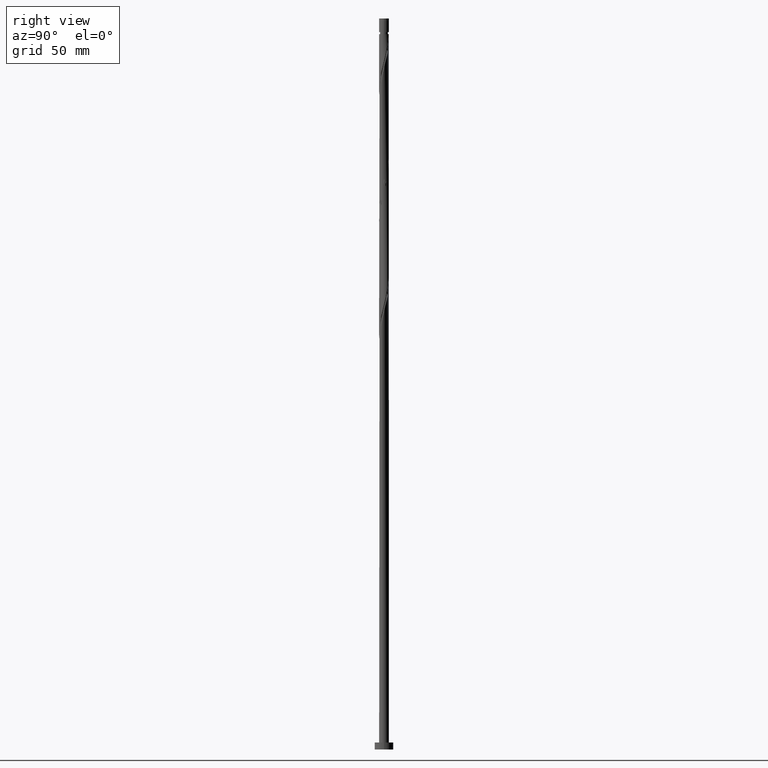
[diagram: clean part render]
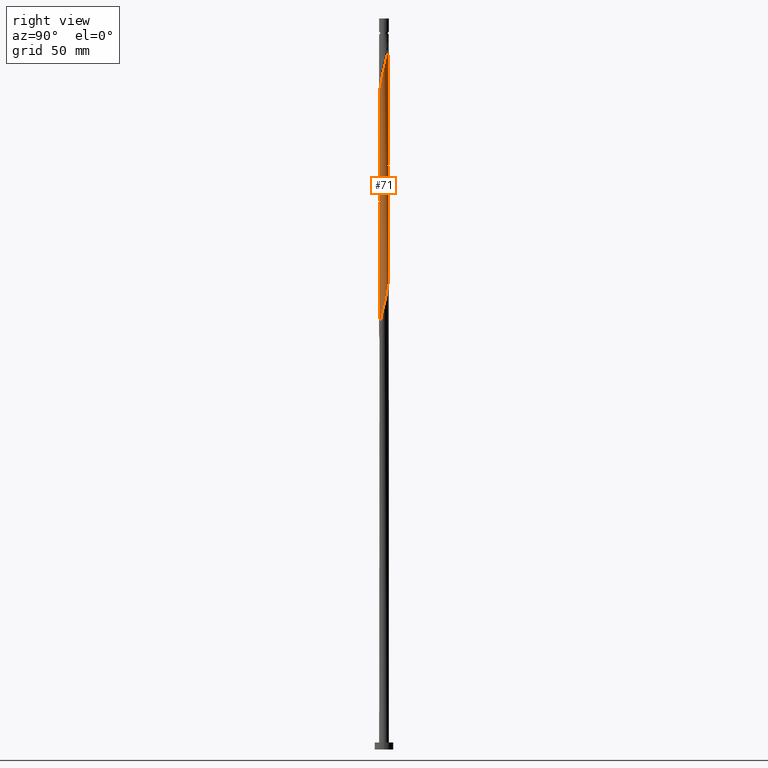
[diagram: same view with one face highlighted and labeled with its STEP entity id]
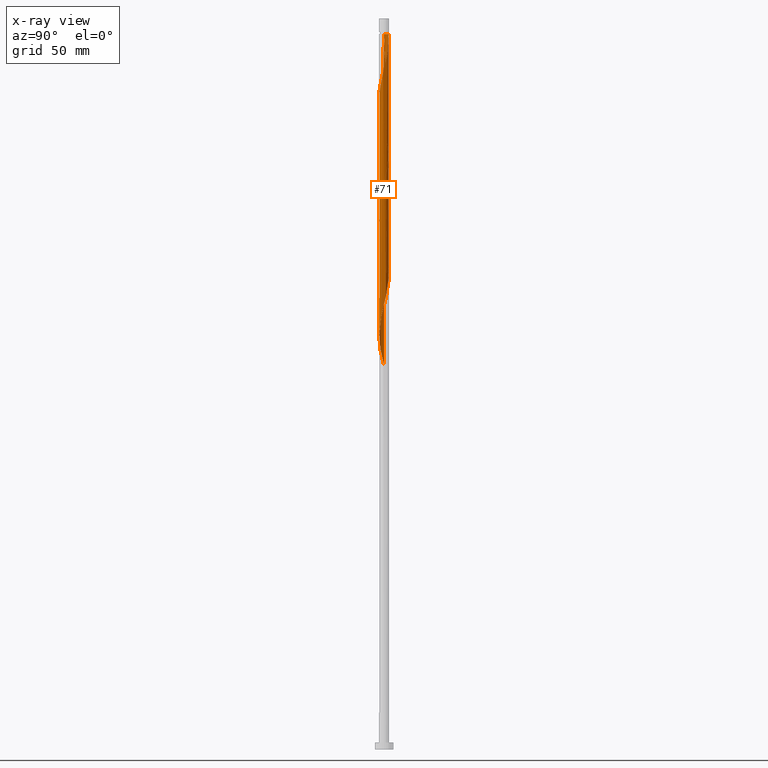
[diagram: x-ray of the same camera — body ghosted, the highlighted face saturated]
A machine part, right view. The second image highlights one B-rep face of the part: STEP entity #71.
The next image is the same camera in x-ray: the body ghosted, the highlighted face saturated — about 0% of this face is hidden behind the body in this view.
In plain terms, the highlighted cylindrical surface (bore or boss wall) has radius 2.1 mm, axis along (-0, -0, -1).
Its self-contained STEP definition (entity closure, byte-faithful):
#4 = CARTESIAN_POINT ( 'NONE',  ( 1.815908065240426694, 1.080954991017605060, 297.9746174760194890 ) ) ;
#13 = CARTESIAN_POINT ( 'NONE',  ( 1.167067840434034220, 1.761799775750848562, 301.7246174760194890 ) ) ;
#24 = CARTESIAN_POINT ( 'NONE',  ( 1.269442871114511151, 1.672876204916714071, 252.0371174760195458 ) ) ;
#29 = CARTESIAN_POINT ( 'NONE',  ( -0.2870755166819187187, 2.093698507840348277, 258.5996174760195458 ) ) ;
#35 = CARTESIAN_POINT ( 'NONE',  ( 2.099391967457698627, -0.05053085170578267699, 293.2871174760195458 ) ) ;
#43 = CARTESIAN_POINT ( 'NONE',  ( -2.100000000000000533, 2.772462431623409920E-15, 165.5866345539256770 ) ) ;
#44 = CARTESIAN_POINT ( 'NONE',  ( -2.058000000000003382, -0.4178947235847835784, 268.9121174760196595 ) ) ;
#48 = CARTESIAN_POINT ( 'NONE',  ( 0.1860138132703548219, 2.105085427075041871, 256.7246174760196027 ) ) ;
#51 = CARTESIAN_POINT ( 'NONE',  ( 0.5164225990933578592, -2.035511655369643069, 233.2871174760195458 ) ) ;
#56 = CARTESIAN_POINT ( 'NONE',  ( 0.000000000000000000, 0.000000000000000000, 315.0000000000000000 ) ) ;
#58 = CARTESIAN_POINT ( 'NONE',  ( -0.5164225990933579702, 2.035511655369643069, 259.5371174760195458 ) ) ;
#62 = CARTESIAN_POINT ( 'NONE',  ( -1.080954991017604616, -1.815908065240424252, 226.7246174760196311 ) ) ;
#63 =( BOUNDED_CURVE ( )  B_SPLINE_CURVE ( 2, ( #1389, #1121, #44, #186, #325, #714, #1669, #1020, #1010, #154, #1701, #703, #1430, #1404, #1537, #732, #196, #1681, #572, #454, #1255, #884, #1143, #1528, #1288, #874, #742, #316, #35, #601, #297, #1296, #167, #4, #1162, #867, #1567, #13, #581, #1132, #422, #981, #288, #589, #445 ),
 .UNSPECIFIED., .F., .T. ) 
 B_SPLINE_CURVE_WITH_KNOTS ( ( 3, 2, 2, 2, 2, 2, 2, 2, 2, 2, 2, 2, 2, 2, 2, 2, 2, 2, 2, 2, 2, 2, 3 ),
 ( 0.5545303401299225277, 0.5625000000000000000, 0.5714285714285713969, 0.5803571428571427937, 0.5892857142857143016, 0.5982142857142856984, 0.6071428571428572063, 0.6160714285714286031, 0.6250000000000000000, 0.6339285714285713969, 0.6428571428571427937, 0.6517857142857144126, 0.6607142857142858094, 0.6696428571428573173, 0.6785714285714287142, 0.6875000000000001110, 0.6964285714285715079, 0.7053571428571429047, 0.7142857142857144126, 0.7232142857142858094, 0.7321428571428573173, 0.7410714285714287142, 0.7500000000000001110 ),
 .UNSPECIFIED. ) 
 CURVE ( )  GEOMETRIC_REPRESENTATION_ITEM ( )  RATIONAL_B_SPLINE_CURVE ( ( 0.9079949616362334996, 0.9039886423360973255, 0.9090909090909637946, 0.9033747362666387781, 0.9090909090909637946, 0.9033747362666387781, 0.9090909090909637946, 0.9033747362666387781, 0.9090909090909637946, 0.9033747362666387781, 0.9090909090909637946, 0.9033747362666387781, 0.9090909090909637946, 0.9033747362666387781, 0.9090909090909637946, 0.9033747362666387781, 0.9090909090909637946, 0.9033747362666387781, 0.9090909090909637946, 0.9033747362666387781, 0.9090909090909637946, 0.9033747362666387781, 0.9090909090909637946, 0.9033747362666387781, 0.9090909090909637946, 0.9033747362666387781, 0.9090909090909637946, 0.9033747362666387781, 0.9090909090909637946, 0.9033747362666387781, 0.9090909090909637946, 0.9033747362666387781, 0.9090909090909637946, 0.9033747362666387781, 0.9090909090909637946, 0.9033747362666387781, 0.9090909090909637946, 0.9033747362666387781, 0.9090909090909637946, 0.9033747362666387781, 0.9090909090909637946, 0.9033747362666387781, 0.9090909090909637946, 0.9033747362666386671, 0.9090909090909639056 ) ) 
 REPRESENTATION_ITEM ( '' )  );
#70 = CARTESIAN_POINT ( 'NONE',  ( -1.609865263481132347, -1.348456092513518279, 171.4121174760195743 ) ) ;
#71 = ADVANCED_FACE ( 'NONE', ( #1719 ), #1308, .T. ) ;
#89 = CARTESIAN_POINT ( 'NONE',  ( -0.6497756338992120018, -2.010914572924958676, 176.0996174760196311 ) ) ;
#100 = CARTESIAN_POINT ( 'NONE',  ( 0.6497756338992122238, 2.010914572924958676, 202.3496174760196311 ) ) ;
#101 = CARTESIAN_POINT ( 'NONE',  ( 2.100000000000000089, 2.571758278209441957E-16, 308.2871174760196595 ) ) ;
#110 = CARTESIAN_POINT ( 'NONE',  ( 0.2870755166819183302, -2.093698507840348277, 179.8496174760196027 ) ) ;
#121 = ORIENTED_EDGE ( 'NONE', *, *, #640, .F. ) ;
#131 = CARTESIAN_POINT ( 'NONE',  ( -2.099391967457694630, -0.05053085170578180269, 218.2871174760195458 ) ) ;
#154 = CARTESIAN_POINT ( 'NONE',  ( -1.167067840434034220, -1.761799775750848784, 275.4746174760194890 ) ) ;
#167 = CARTESIAN_POINT ( 'NONE',  ( 1.913411319082694462, 0.8653653124584090861, 297.0371174760197164 ) ) ;
#177 = CARTESIAN_POINT ( 'NONE',  ( 2.100000000000000533, 0.02526908404941695732, 244.4369972421507669 ) ) ;
#186 = CARTESIAN_POINT ( 'NONE',  ( -2.010914572924960453, -0.6497756338992121128, 269.8496174760194890 ) ) ;
#194 = CIRCLE ( 'NONE', #1656, 2.099999999999975220 ) ;
#196 = CARTESIAN_POINT ( 'NONE',  ( 0.4178947235847834674, -2.058000000000003382, 282.0371174760195458 ) ) ;
#209 = CARTESIAN_POINT ( 'NONE',  ( -1.815908065240424252, 1.080954991017604616, 266.0996174760196027 ) ) ;
#227 = CARTESIAN_POINT ( 'NONE',  ( -1.080954991017604616, -1.815908065240424252, 174.2246174760195458 ) ) ;
#234 = CARTESIAN_POINT ( 'NONE',  ( 0.7457696815047973882, -1.977324802898937861, 181.7246174760196027 ) ) ;
#242 = CARTESIAN_POINT ( 'NONE',  ( -0.1860138132703551272, -2.105085427075041871, 177.9746174760195743 ) ) ;
#243 = CARTESIAN_POINT ( 'NONE',  ( 1.672876204916714071, -1.269442871114511151, 238.9121174760195458 ) ) ;
#251 = CARTESIAN_POINT ( 'NONE',  ( -0.7457696815047973882, 1.977324802898937861, 207.9746174760196311 ) ) ;
#260 = CARTESIAN_POINT ( 'NONE',  ( -2.100000000000000533, 2.772462431623409920E-15, 165.5866345539256770 ) ) ;
#268 = VERTEX_POINT ( 'NONE', #1403 ) ;
#269 = CARTESIAN_POINT ( 'NONE',  ( 2.100000000000000533, 2.832165525709512587E-15, 244.3366345539255917 ) ) ;
#288 = CARTESIAN_POINT ( 'NONE',  ( 0.05053085170578282964, 2.099391967457698627, 306.4121174760196027 ) ) ;
#297 = CARTESIAN_POINT ( 'NONE',  ( 2.058000000000003382, 0.4178947235847832453, 295.1621174760198301 ) ) ;
#308 = CARTESIAN_POINT ( 'NONE',  ( -2.100000000000000089, 0.000000000000000000, 315.0000000000000000 ) ) ;
#316 = CARTESIAN_POINT ( 'NONE',  ( 2.093698507840349166, -0.2870755166819197179, 292.3496174760194890 ) ) ;
#320 = CARTESIAN_POINT ( 'NONE',  ( -2.100000000000000089, -4.626989791672984369E-16, 270.5866345539255917 ) ) ;
#325 = CARTESIAN_POINT ( 'NONE',  ( -1.913411319082694462, -0.8653653124584091971, 270.7871174760197164 ) ) ;
#353 = CARTESIAN_POINT ( 'NONE',  ( -2.057999999999999829, 0.4178947235847834119, 268.9121174760195458 ) ) ;
#354 = CARTESIAN_POINT ( 'NONE',  ( -2.093698507840348277, -0.2870755166819184412, 166.7246174760195743 ) ) ;
#361 = CARTESIAN_POINT ( 'NONE',  ( -0.5164225990933579702, 2.035511655369643069, 207.0371174760195458 ) ) ;
#362 = VERTEX_POINT ( 'NONE', #43 ) ;
#368 = CARTESIAN_POINT ( 'NONE',  ( -1.348456092513518279, 1.609865263481132347, 210.7871174760195458 ) ) ;
#369 = CARTESIAN_POINT ( 'NONE',  ( 1.167067840434032444, -1.761799775750847674, 236.0996174760195743 ) ) ;
#377 = CARTESIAN_POINT ( 'NONE',  ( -1.977324802898937861, -0.7457696815047973882, 168.5996174760196595 ) ) ;
#378 = CARTESIAN_POINT ( 'NONE',  ( 2.010914572924958676, -0.6497756338992121128, 241.7246174760196027 ) ) ;
#386 = CARTESIAN_POINT ( 'NONE',  ( 1.977324802898937861, 0.7457696815047971661, 194.8496174760195458 ) ) ;
#422 = CARTESIAN_POINT ( 'NONE',  ( 0.5164225990933596355, 2.035511655369645734, 304.5371174760196595 ) ) ;
#432 = CARTESIAN_POINT ( 'NONE',  ( 2.100000000000000533, 2.832165525709512587E-15, 244.3366345539255917 ) ) ;
#436 = VERTEX_POINT ( 'NONE', #101 ) ;
#445 = CARTESIAN_POINT ( 'NONE',  ( -0.4178947235848409214, 2.058000000000576701, 308.2871174760196595 ) ) ;
#454 = CARTESIAN_POINT ( 'NONE',  ( 1.080954991017605282, -1.815908065240426694, 284.8496174760196027 ) ) ;
#458 = DIRECTION ( 'NONE',  ( -1.000000000000000000, 0.000000000000000000, 0.000000000000000000 ) ) ;
#464 = CARTESIAN_POINT ( 'NONE',  ( 1.977324802898937861, 0.7457696815047971661, 247.3496174760195743 ) ) ;
#477 = CARTESIAN_POINT ( 'NONE',  ( -0.8653653124584083089, -1.913411319082690909, 227.6621174760195458 ) ) ;
#484 = CARTESIAN_POINT ( 'NONE',  ( 0.6497756338992122238, 2.010914572924958676, 254.8496174760195743 ) ) ;
#490 = CARTESIAN_POINT ( 'NONE',  ( -1.529844344593004335, 1.457930751211418352, 264.2246174760196027 ) ) ;
#492 = CARTESIAN_POINT ( 'NONE',  ( 1.761799775750846786, 1.167067840434032222, 196.7246174760195458 ) ) ;
#499 = CARTESIAN_POINT ( 'NONE',  ( 0.4178947235847838559, 2.057999999999999829, 203.2871174760195458 ) ) ;
#508 = CARTESIAN_POINT ( 'NONE',  ( 2.035511655369643069, 0.5164225990933577481, 193.9121174760195174 ) ) ;
#510 = CARTESIAN_POINT ( 'NONE',  ( -1.269442871114510929, -1.672876204916714293, 225.7871174760195743 ) ) ;
#517 = CARTESIAN_POINT ( 'NONE',  ( -1.457930751211418352, -1.529844344593004335, 172.3496174760196311 ) ) ;
#518 = CARTESIAN_POINT ( 'NONE',  ( 2.100000000000000533, -0.2110579412044377712, 243.4983634749620194 ) ) ;
#526 = CARTESIAN_POINT ( 'NONE',  ( 1.815908065240424030, -1.080954991017604616, 187.3496174760196027 ) ) ;
#534 = EDGE_CURVE ( 'NONE', #268, #362, #1356, .T. ) ;
#537 = CARTESIAN_POINT ( 'NONE',  ( 0.7457696815047973882, -1.977324802898937861, 234.2246174760196311 ) ) ;
#547 = CARTESIAN_POINT ( 'NONE',  ( -2.010914572924958676, 0.6497756338992118907, 215.4746174760196311 ) ) ;
#568 =( BOUNDED_CURVE ( )  B_SPLINE_CURVE ( 2, ( #1283, #879, #353, #746, #1697, #209, #1426, #490, #755, #1311, #606, #1452, #58, #29, #1301, #48, #1175, #484, #990, #1422, #24, #1692, #1548, #1267, #1556, #464, #855, #1413, #609, #177, #432 ),
 .UNSPECIFIED., .F., .T. ) 
 B_SPLINE_CURVE_WITH_KNOTS ( ( 3, 2, 2, 2, 2, 2, 2, 2, 2, 2, 2, 2, 2, 2, 2, 3 ),
 ( 0.4295303401299219170, 0.4375000000000000000, 0.4464285714285714524, 0.4553571428571428492, 0.4642857142857143016, 0.4732142857142856984, 0.4821428571428571508, 0.4910714285714285476, 0.5000000000000000000, 0.5089285714285713969, 0.5178571428571429047, 0.5267857142857143016, 0.5357142857142856984, 0.5446428571428570953, 0.5535714285714286031, 0.5545303401299220836 ),
 .UNSPECIFIED. ) 
 CURVE ( )  GEOMETRIC_REPRESENTATION_ITEM ( )  RATIONAL_B_SPLINE_CURVE ( ( 0.9079949616362279485, 0.9039886423360907752, 0.9090909090909577994, 0.9033747362666324499, 0.9090909090909577994, 0.9033747362666324499, 0.9090909090909577994, 0.9033747362666324499, 0.9090909090909577994, 0.9033747362666324499, 0.9090909090909577994, 0.9033747362666324499, 0.9090909090909577994, 0.9033747362666324499, 0.9090909090909577994, 0.9033747362666324499, 0.9090909090909577994, 0.9033747362666324499, 0.9090909090909577994, 0.9033747362666324499, 0.9090909090909577994, 0.9033747362666324499, 0.9090909090909577994, 0.9033747362666324499, 0.9090909090909577994, 0.9033747362666324499, 0.9090909090909577994, 0.9033747362666324499, 0.9090909090909577994, 0.9084770030214994740, 0.9079949616362277265 ) ) 
 REPRESENTATION_ITEM ( '' )  );
#572 = CARTESIAN_POINT ( 'NONE',  ( 0.8653653124584090861, -1.913411319082694462, 283.9121174760196595 ) ) ;
#581 = CARTESIAN_POINT ( 'NONE',  ( 0.9564187609694170256, 1.869562289324894433, 302.6621174760196027 ) ) ;
#586 = ORIENTED_EDGE ( 'NONE', *, *, #1419, .T. ) ;
#589 = CARTESIAN_POINT ( 'NONE',  ( -0.1860138132703572089, 2.105085427075044979, 307.3496174760196595 ) ) ;
#601 = CARTESIAN_POINT ( 'NONE',  ( 2.105085427075044535, 0.1860138132703543501, 294.2246174760196027 ) ) ;
#606 = CARTESIAN_POINT ( 'NONE',  ( -0.9564187609694148051, 1.869562289324891990, 261.4121174760195458 ) ) ;
#609 = CARTESIAN_POINT ( 'NONE',  ( 2.099391967457694630, 0.05053085170578155289, 244.5371174760195174 ) ) ;
#614 = CARTESIAN_POINT ( 'NONE',  ( 2.100000000000000533, 2.832165525709512193E-15, 244.3366345539255917 ) ) ;
#618 = CARTESIAN_POINT ( 'NONE',  ( 0.05053085170578170554, -2.099391967457694630, 231.4121174760195174 ) ) ;
#623 = CARTESIAN_POINT ( 'NONE',  ( -0.4178947235848409214, 2.058000000000576701, 308.2871174760196595 ) ) ;
#628 = CARTESIAN_POINT ( 'NONE',  ( 1.348456092513518279, -1.609865263481132569, 237.0371174760195743 ) ) ;
#640 = EDGE_CURVE ( 'NONE', #1348, #362, #1073, .T. ) ;
#649 = CARTESIAN_POINT ( 'NONE',  ( 0.9564187609694145831, -1.869562289324892435, 182.6621174760196027 ) ) ;
#655 = CARTESIAN_POINT ( 'NONE',  ( -1.529844344593004335, 1.457930751211418352, 211.7246174760196027 ) ) ;
#663 = CARTESIAN_POINT ( 'NONE',  ( -0.05053085170578192065, 2.099391967457694630, 205.1621174760195743 ) ) ;
#673 = ORIENTED_EDGE ( 'NONE', *, *, #1585, .F. ) ;
#684 = ORIENTED_EDGE ( 'NONE', *, *, #1393, .T. ) ;
#685 = CARTESIAN_POINT ( 'NONE',  ( -2.093698507840348277, -0.2870755166819184412, 219.2246174760196027 ) ) ;
#703 = CARTESIAN_POINT ( 'NONE',  ( -0.7457696815047987204, -1.977324802898940526, 277.3496174760194322 ) ) ;
#714 = CARTESIAN_POINT ( 'NONE',  ( -1.815908065240426694, -1.080954991017605282, 271.7246174760195458 ) ) ;
#723 = DIRECTION ( 'NONE',  ( -0.000000000000000000, -0.000000000000000000, -1.000000000000000000 ) ) ;
#732 = CARTESIAN_POINT ( 'NONE',  ( 0.1860138132703544611, -2.105085427075044535, 281.0996174760196595 ) ) ;
#742 = CARTESIAN_POINT ( 'NONE',  ( 2.035511655369645734, -0.5164225990933594135, 291.4121174760197164 ) ) ;
#746 = CARTESIAN_POINT ( 'NONE',  ( -2.010914572924958676, 0.6497756338992118907, 267.9746174760196027 ) ) ;
#755 = CARTESIAN_POINT ( 'NONE',  ( -1.348456092513518279, 1.609865263481132347, 263.2871174760195458 ) ) ;
#788 = CARTESIAN_POINT ( 'NONE',  ( 1.167067840434032444, -1.761799775750847674, 183.5996174760195743 ) ) ;
#789 = CARTESIAN_POINT ( 'NONE',  ( -1.609865263481132347, -1.348456092513518279, 223.9121174760195743 ) ) ;
#797 = CARTESIAN_POINT ( 'NONE',  ( 0.8653653124584085310, 1.913411319082690909, 201.4121174760196027 ) ) ;
#798 = CARTESIAN_POINT ( 'NONE',  ( 0.2870755166819183302, -2.093698507840348277, 232.3496174760196027 ) ) ;
#816 = ORIENTED_EDGE ( 'NONE', *, *, #534, .T. ) ;
#817 = CARTESIAN_POINT ( 'NONE',  ( 0.9564187609694145831, -1.869562289324892435, 235.1621174760196027 ) ) ;
#818 = VECTOR ( 'NONE', #928, 1000.000000000000000 ) ;
#853 = CARTESIAN_POINT ( 'NONE',  ( -2.099999999999975220, 0.000000000000000000, 308.2871174760195458 ) ) ;
#855 = CARTESIAN_POINT ( 'NONE',  ( 2.035511655369643069, 0.5164225990933577481, 246.4121174760195174 ) ) ;
#867 = CARTESIAN_POINT ( 'NONE',  ( 1.529844344593006999, 1.457930751211418796, 299.8496174760194890 ) ) ;
#874 = CARTESIAN_POINT ( 'NONE',  ( 1.977324802898940526, -0.7457696815047987204, 290.4746174760195458 ) ) ;
#879 = CARTESIAN_POINT ( 'NONE',  ( -2.100000000000000977, 0.2110579412044344405, 269.7483634749619910 ) ) ;
#884 = CARTESIAN_POINT ( 'NONE',  ( 1.457930751211419462, -1.529844344593006999, 286.7246174760195458 ) ) ;
#899 = CARTESIAN_POINT ( 'NONE',  ( -2.100000000000000089, 0.000000000000000000, 315.0000000000000000 ) ) ;
#910 = CARTESIAN_POINT ( 'NONE',  ( 1.609865263481132569, 1.348456092513518279, 197.6621174760195174 ) ) ;
#919 = CARTESIAN_POINT ( 'NONE',  ( 1.269442871114511151, 1.672876204916714071, 199.5371174760196027 ) ) ;
#926 = CARTESIAN_POINT ( 'NONE',  ( 1.348456092513518279, -1.609865263481132569, 184.5371174760195458 ) ) ;
#928 = DIRECTION ( 'NONE',  ( -0.000000000000000000, -0.000000000000000000, -1.000000000000000000 ) ) ;
#937 = CARTESIAN_POINT ( 'NONE',  ( -2.035511655369643069, -0.5164225990933578592, 167.6621174760195174 ) ) ;
#947 = CARTESIAN_POINT ( 'NONE',  ( 2.099391967457694630, 0.05053085170578155289, 192.0371174760195743 ) ) ;
#949 = CARTESIAN_POINT ( 'NONE',  ( 2.057999999999999829, -0.4178947235847836894, 242.6621174760196027 ) ) ;
#981 = CARTESIAN_POINT ( 'NONE',  ( 0.2870755166819198290, 2.093698507840349166, 305.4746174760195458 ) ) ;
#990 = CARTESIAN_POINT ( 'NONE',  ( 0.8653653124584085310, 1.913411319082690909, 253.9121174760195458 ) ) ;
#1002 = LINE ( 'NONE', #308, #1347 ) ;
#1010 = CARTESIAN_POINT ( 'NONE',  ( -1.348456092513521831, -1.609865263481134789, 274.5371174760196595 ) ) ;
#1020 = CARTESIAN_POINT ( 'NONE',  ( -1.529844344593006999, -1.457930751211419462, 273.5996174760196027 ) ) ;
#1048 = CARTESIAN_POINT ( 'NONE',  ( 2.100000000000000089, 2.571758278209441957E-16, 315.0000000000000000 ) ) ;
#1049 = CARTESIAN_POINT ( 'NONE',  ( -1.913411319082690909, 0.8653653124584081979, 214.5371174760195174 ) ) ;
#1056 = CARTESIAN_POINT ( 'NONE',  ( 2.093698507840348277, 0.2870755166819183302, 192.9746174760195743 ) ) ;
#1062 = CARTESIAN_POINT ( 'NONE',  ( 1.457930751211418352, 1.529844344593004113, 198.5996174760196027 ) ) ;
#1070 = CARTESIAN_POINT ( 'NONE',  ( -1.761799775750846786, -1.167067840434032444, 170.4746174760196027 ) ) ;
#1071 = CARTESIAN_POINT ( 'NONE',  ( -1.977324802898937861, -0.7457696815047973882, 221.0996174760195458 ) ) ;
#1073 =( BOUNDED_CURVE ( )  B_SPLINE_CURVE ( 2, ( #269, #518, #949, #378, #1446, #1779, #243, #1497, #628, #369, #817, #537, #51, #798, #618, #1168, #1724, #1715, #477, #62, #510, #1177, #789, #1349, #1208, #1071, #1233, #685, #131, #1373, #1788, #547, #1049, #1199, #1732, #655, #368, #1483, #1346, #251, #361, #1600, #663, #1749, #499, #100, #797, #1206, #919, #1062, #910, #492, #1355, #386, #508, #1056, #947, #1475, #1191, #1616, #1495, #526, #1607, #1469, #926, #788, #649, #234, #1757, #110, #1216, #242, #1081, #89, #1328, #227, #1767, #517, #70, #1070, #1742, #377, #937, #354, #1461, #1627, #260 ),
 .UNSPECIFIED., .F., .T. ) 
 B_SPLINE_CURVE_WITH_KNOTS ( ( 3, 2, 2, 2, 2, 2, 2, 2, 2, 2, 2, 2, 2, 2, 2, 2, 2, 2, 2, 2, 2, 2, 2, 2, 2, 2, 2, 2, 2, 2, 2, 2, 2, 2, 2, 2, 2, 2, 2, 2, 2, 2, 2, 3 ),
 ( 0.5545303401299220836, 0.5625000000000000000, 0.5714285714285713969, 0.5803571428571429047, 0.5892857142857143016, 0.5982142857142856984, 0.6071428571428570953, 0.6160714285714286031, 0.6250000000000000000, 0.6339285714285713969, 0.6428571428571429047, 0.6517857142857143016, 0.6607142857142856984, 0.6696428571428570953, 0.6785714285714286031, 0.6875000000000000000, 0.6964285714285713969, 0.7053571428571429047, 0.7142857142857143016, 0.7232142857142856984, 0.7321428571428570953, 0.7410714285714286031, 0.7500000000000000000, 0.7589285714285713969, 0.7678571428571429047, 0.7767857142857143016, 0.7857142857142856984, 0.7946428571428570953, 0.8035714285714286031, 0.8125000000000000000, 0.8214285714285713969, 0.8303571428571429047, 0.8392857142857143016, 0.8482142857142856984, 0.8571428571428570953, 0.8660714285714286031, 0.8750000000000000000, 0.8839285714285713969, 0.8928571428571429047, 0.9017857142857143016, 0.9107142857142856984, 0.9196428571428570953, 0.9285714285714286031, 0.9295303401299218615 ),
 .UNSPECIFIED. ) 
 CURVE ( )  GEOMETRIC_REPRESENTATION_ITEM ( )  RATIONAL_B_SPLINE_CURVE ( ( 0.9079949616362277265, 0.9039886423360907752, 0.9090909090909577994, 0.9033747362666324499, 0.9090909090909577994, 0.9033747362666324499, 0.9090909090909577994, 0.9033747362666324499, 0.9090909090909577994, 0.9033747362666324499, 0.9090909090909577994, 0.9033747362666324499, 0.9090909090909577994, 0.9033747362666324499, 0.9090909090909577994, 0.9033747362666324499, 0.9090909090909577994, 0.9033747362666324499, 0.9090909090909577994, 0.9033747362666324499, 0.9090909090909577994, 0.9033747362666324499, 0.9090909090909577994, 0.9033747362666324499, 0.9090909090909577994, 0.9033747362666324499, 0.9090909090909577994, 0.9033747362666324499, 0.9090909090909577994, 0.9033747362666324499, 0.9090909090909577994, 0.9033747362666324499, 0.9090909090909577994, 0.9033747362666324499, 0.9090909090909577994, 0.9033747362666324499, 0.9090909090909577994, 0.9033747362666324499, 0.9090909090909577994, 0.9033747362666324499, 0.9090909090909577994, 0.9033747362666324499, 0.9090909090909577994, 0.9033747362666324499, 0.9090909090909577994, 0.9033747362666324499, 0.9090909090909577994, 0.9033747362666324499, 0.9090909090909577994, 0.9033747362666324499, 0.9090909090909577994, 0.9033747362666324499, 0.9090909090909577994, 0.9033747362666324499, 0.9090909090909577994, 0.9033747362666324499, 0.9090909090909577994, 0.9033747362666324499, 0.9090909090909577994, 0.9033747362666324499, 0.9090909090909577994, 0.9033747362666324499, 0.9090909090909577994, 0.9033747362666324499, 0.9090909090909577994, 0.9033747362666324499, 0.9090909090909577994, 0.9033747362666324499, 0.9090909090909577994, 0.9033747362666324499, 0.9090909090909577994, 0.9033747362666324499, 0.9090909090909577994, 0.9033747362666324499, 0.9090909090909577994, 0.9033747362666324499, 0.9090909090909577994, 0.9033747362666324499, 0.9090909090909577994, 0.9033747362666324499, 0.9090909090909577994, 0.9033747362666324499, 0.9090909090909577994, 0.9033747362666324499, 0.9090909090909577994, 0.9084770030214996961, 0.9079949616362281706 ) ) 
 REPRESENTATION_ITEM ( '' )  );
#1081 = CARTESIAN_POINT ( 'NONE',  ( -0.4178947235847835784, -2.057999999999999829, 177.0371174760195458 ) ) ;
#1089 = ORIENTED_EDGE ( 'NONE', *, *, #1543, .F. ) ;
#1098 = ORIENTED_EDGE ( 'NONE', *, *, #1419, .F. ) ;
#1107 = VERTEX_POINT ( 'NONE', #853 ) ;
#1109 = VECTOR ( 'NONE', #1560, 1000.000000000000000 ) ;
#1121 = CARTESIAN_POINT ( 'NONE',  ( -2.100000000000000533, -0.2110579412044488457, 268.0758714770771007 ) ) ;
#1132 = CARTESIAN_POINT ( 'NONE',  ( 0.7457696815047989425, 1.977324802898940526, 303.5996174760196027 ) ) ;
#1143 = CARTESIAN_POINT ( 'NONE',  ( 1.609865263481134123, -1.348456092513521831, 287.6621174760194890 ) ) ;
#1155 = DIRECTION ( 'NONE',  ( -0.000000000000000000, -0.000000000000000000, -1.000000000000000000 ) ) ;
#1162 = CARTESIAN_POINT ( 'NONE',  ( 1.672876204916717402, 1.269442871114512483, 298.9121174760196027 ) ) ;
#1168 = CARTESIAN_POINT ( 'NONE',  ( -0.1860138132703551272, -2.105085427075041871, 230.4746174760196027 ) ) ;
#1175 = CARTESIAN_POINT ( 'NONE',  ( 0.4178947235847838559, 2.057999999999999829, 255.7871174760195743 ) ) ;
#1177 = CARTESIAN_POINT ( 'NONE',  ( -1.457930751211418352, -1.529844344593004335, 224.8496174760195743 ) ) ;
#1191 = CARTESIAN_POINT ( 'NONE',  ( 2.057999999999999829, -0.4178947235847836894, 190.1621174760195743 ) ) ;
#1199 = CARTESIAN_POINT ( 'NONE',  ( -1.815908065240424252, 1.080954991017604616, 213.5996174760196311 ) ) ;
#1206 = CARTESIAN_POINT ( 'NONE',  ( 1.080954991017604838, 1.815908065240424030, 200.4746174760196595 ) ) ;
#1208 = CARTESIAN_POINT ( 'NONE',  ( -1.869562289324892435, -0.9564187609694145831, 222.0371174760196027 ) ) ;
#1216 = CARTESIAN_POINT ( 'NONE',  ( 0.05053085170578170554, -2.099391967457694630, 178.9121174760195743 ) ) ;
#1233 = CARTESIAN_POINT ( 'NONE',  ( -2.035511655369643069, -0.5164225990933578592, 220.1621174760194890 ) ) ;
#1255 = CARTESIAN_POINT ( 'NONE',  ( 1.269442871114512927, -1.672876204916717180, 285.7871174760196027 ) ) ;
#1267 = CARTESIAN_POINT ( 'NONE',  ( 1.761799775750846786, 1.167067840434032222, 249.2246174760196027 ) ) ;
#1281 = DIRECTION ( 'NONE',  ( -1.000000000000000000, 0.000000000000000000, 0.000000000000000000 ) ) ;
#1283 = CARTESIAN_POINT ( 'NONE',  ( -2.100000000000000089, -4.626989791672984369E-16, 270.5866345539255917 ) ) ;
#1288 = CARTESIAN_POINT ( 'NONE',  ( 1.869562289324894433, -0.9564187609694170256, 289.5371174760196027 ) ) ;
#1296 = CARTESIAN_POINT ( 'NONE',  ( 2.010914572924960453, 0.6497756338992118907, 296.0996174760195458 ) ) ;
#1301 = CARTESIAN_POINT ( 'NONE',  ( -0.05053085170578192065, 2.099391967457694630, 257.6621174760196027 ) ) ;
#1308 = CYLINDRICAL_SURFACE ( 'NONE', #1450, 2.100000000000000089 ) ;
#1311 = CARTESIAN_POINT ( 'NONE',  ( -1.167067840434033110, 1.761799775750846786, 262.3496174760195458 ) ) ;
#1320 = DIRECTION ( 'NONE',  ( -0.000000000000000000, -0.000000000000000000, -1.000000000000000000 ) ) ;
#1328 = CARTESIAN_POINT ( 'NONE',  ( -0.8653653124584083089, -1.913411319082690909, 175.1621174760195174 ) ) ;
#1346 = CARTESIAN_POINT ( 'NONE',  ( -0.9564187609694148051, 1.869562289324891990, 208.9121174760195458 ) ) ;
#1347 = VECTOR ( 'NONE', #723, 1000.000000000000000 ) ;
#1348 = VERTEX_POINT ( 'NONE', #614 ) ;
#1349 = CARTESIAN_POINT ( 'NONE',  ( -1.761799775750846786, -1.167067840434032444, 222.9746174760196311 ) ) ;
#1355 = CARTESIAN_POINT ( 'NONE',  ( 1.869562289324892435, 0.9564187609694145831, 195.7871174760195743 ) ) ;
#1356 = LINE ( 'NONE', #899, #818 ) ;
#1373 = CARTESIAN_POINT ( 'NONE',  ( -2.105085427075041871, 0.1860138132703549885, 217.3496174760195743 ) ) ;
#1389 = CARTESIAN_POINT ( 'NONE',  ( -2.100000000000003642, 1.007489712702981978E-15, 267.2376003981134431 ) ) ;
#1393 = EDGE_CURVE ( 'NONE', #1107, #1512, #194, .T. ) ;
#1403 = CARTESIAN_POINT ( 'NONE',  ( -2.100000000000003642, 1.007489712702981978E-15, 267.2376003981134431 ) ) ;
#1404 = CARTESIAN_POINT ( 'NONE',  ( -0.2870755166819194959, -2.093698507840349610, 279.2246174760194890 ) ) ;
#1413 = CARTESIAN_POINT ( 'NONE',  ( 2.093698507840348277, 0.2870755166819183302, 245.4746174760196595 ) ) ;
#1419 = EDGE_CURVE ( 'NONE', #436, #1348, #1705, .T. ) ;
#1422 = CARTESIAN_POINT ( 'NONE',  ( 1.080954991017604838, 1.815908065240424030, 252.9746174760196311 ) ) ;
#1426 = CARTESIAN_POINT ( 'NONE',  ( -1.672876204916714515, 1.269442871114510929, 265.1621174760196027 ) ) ;
#1430 = CARTESIAN_POINT ( 'NONE',  ( -0.5164225990933594135, -2.035511655369645734, 278.2871174760197164 ) ) ;
#1436 = CARTESIAN_POINT ( 'NONE',  ( 0.000000000000000000, 0.000000000000000000, 308.2871174760195458 ) ) ;
#1446 = CARTESIAN_POINT ( 'NONE',  ( 1.913411319082690909, -0.8653653124584083089, 240.7871174760195174 ) ) ;
#1450 = AXIS2_PLACEMENT_3D ( 'NONE', #56, #1155, #1281 ) ;
#1452 = CARTESIAN_POINT ( 'NONE',  ( -0.7457696815047973882, 1.977324802898937861, 260.4746174760196595 ) ) ;
#1461 = CARTESIAN_POINT ( 'NONE',  ( -2.099391967457694630, -0.05053085170578180269, 165.7871174760195743 ) ) ;
#1469 = CARTESIAN_POINT ( 'NONE',  ( 1.529844344593004335, -1.457930751211418352, 185.4746174760195743 ) ) ;
#1475 = CARTESIAN_POINT ( 'NONE',  ( 2.105085427075041871, -0.1860138132703552383, 191.0996174760196027 ) ) ;
#1483 = CARTESIAN_POINT ( 'NONE',  ( -1.167067840434033110, 1.761799775750846786, 209.8496174760196311 ) ) ;
#1486 = VERTEX_POINT ( 'NONE', #320 ) ;
#1495 = CARTESIAN_POINT ( 'NONE',  ( 1.913411319082690909, -0.8653653124584083089, 188.2871174760195743 ) ) ;
#1497 = CARTESIAN_POINT ( 'NONE',  ( 1.529844344593004335, -1.457930751211418352, 237.9746174760196311 ) ) ;
#1504 = EDGE_LOOP ( 'NONE', ( #673, #684, #1089, #816, #121, #1098, #586, #1542 ) ) ;
#1512 = VERTEX_POINT ( 'NONE', #623 ) ;
#1527 = EDGE_CURVE ( 'NONE', #1486, #1348, #568, .T. ) ;
#1528 = CARTESIAN_POINT ( 'NONE',  ( 1.761799775750848784, -1.167067840434034220, 288.5996174760196027 ) ) ;
#1537 = CARTESIAN_POINT ( 'NONE',  ( -0.05053085170578251739, -2.099391967457698627, 280.1621174760196027 ) ) ;
#1542 = ORIENTED_EDGE ( 'NONE', *, *, #1527, .F. ) ;
#1543 = EDGE_CURVE ( 'NONE', #268, #1512, #63, .T. ) ;
#1548 = CARTESIAN_POINT ( 'NONE',  ( 1.609865263481132569, 1.348456092513518279, 250.1621174760195743 ) ) ;
#1556 = CARTESIAN_POINT ( 'NONE',  ( 1.869562289324892435, 0.9564187609694145831, 248.2871174760195743 ) ) ;
#1560 = DIRECTION ( 'NONE',  ( -0.000000000000000000, -0.000000000000000000, -1.000000000000000000 ) ) ;
#1567 = CARTESIAN_POINT ( 'NONE',  ( 1.348456092513521831, 1.609865263481134123, 300.7871174760195458 ) ) ;
#1585 = EDGE_CURVE ( 'NONE', #1107, #1486, #1002, .T. ) ;
#1600 = CARTESIAN_POINT ( 'NONE',  ( -0.2870755166819187187, 2.093698507840348277, 206.0996174760196595 ) ) ;
#1607 = CARTESIAN_POINT ( 'NONE',  ( 1.672876204916714071, -1.269442871114511151, 186.4121174760195174 ) ) ;
#1616 = CARTESIAN_POINT ( 'NONE',  ( 2.010914572924958676, -0.6497756338992121128, 189.2246174760195458 ) ) ;
#1627 = CARTESIAN_POINT ( 'NONE',  ( -2.100000000000000089, -0.02526908404942305661, 165.6869972421507100 ) ) ;
#1656 = AXIS2_PLACEMENT_3D ( 'NONE', #1436, #1320, #458 ) ;
#1669 = CARTESIAN_POINT ( 'NONE',  ( -1.672876204916717180, -1.269442871114512927, 272.6621174760196595 ) ) ;
#1681 = CARTESIAN_POINT ( 'NONE',  ( 0.6497756338992120018, -2.010914572924960453, 282.9746174760196027 ) ) ;
#1692 = CARTESIAN_POINT ( 'NONE',  ( 1.457930751211418352, 1.529844344593004113, 251.0996174760195458 ) ) ;
#1697 = CARTESIAN_POINT ( 'NONE',  ( -1.913411319082690909, 0.8653653124584081979, 267.0371174760194890 ) ) ;
#1701 = CARTESIAN_POINT ( 'NONE',  ( -0.9564187609694169145, -1.869562289324894433, 276.4121174760195458 ) ) ;
#1705 = LINE ( 'NONE', #1048, #1109 ) ;
#1715 = CARTESIAN_POINT ( 'NONE',  ( -0.6497756338992120018, -2.010914572924958676, 228.5996174760196027 ) ) ;
#1719 = FACE_OUTER_BOUND ( 'NONE', #1504, .T. ) ;
#1724 = CARTESIAN_POINT ( 'NONE',  ( -0.4178947235847835784, -2.057999999999999829, 229.5371174760195743 ) ) ;
#1732 = CARTESIAN_POINT ( 'NONE',  ( -1.672876204916714515, 1.269442871114510929, 212.6621174760195458 ) ) ;
#1742 = CARTESIAN_POINT ( 'NONE',  ( -1.869562289324892435, -0.9564187609694145831, 169.5371174760195743 ) ) ;
#1749 = CARTESIAN_POINT ( 'NONE',  ( 0.1860138132703548219, 2.105085427075041871, 204.2246174760195743 ) ) ;
#1757 = CARTESIAN_POINT ( 'NONE',  ( 0.5164225990933578592, -2.035511655369643069, 180.7871174760195743 ) ) ;
#1767 = CARTESIAN_POINT ( 'NONE',  ( -1.269442871114510929, -1.672876204916714293, 173.2871174760195174 ) ) ;
#1779 = CARTESIAN_POINT ( 'NONE',  ( 1.815908065240424030, -1.080954991017604616, 239.8496174760196027 ) ) ;
#1788 = CARTESIAN_POINT ( 'NONE',  ( -2.057999999999999829, 0.4178947235847834119, 216.4121174760196027 ) ) ;